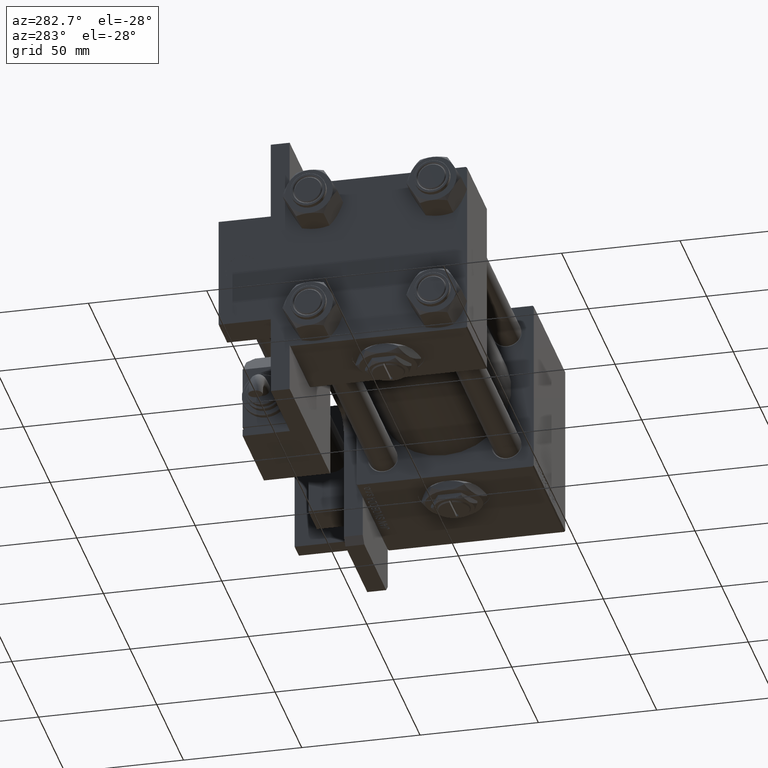
[diagram: clean part render]
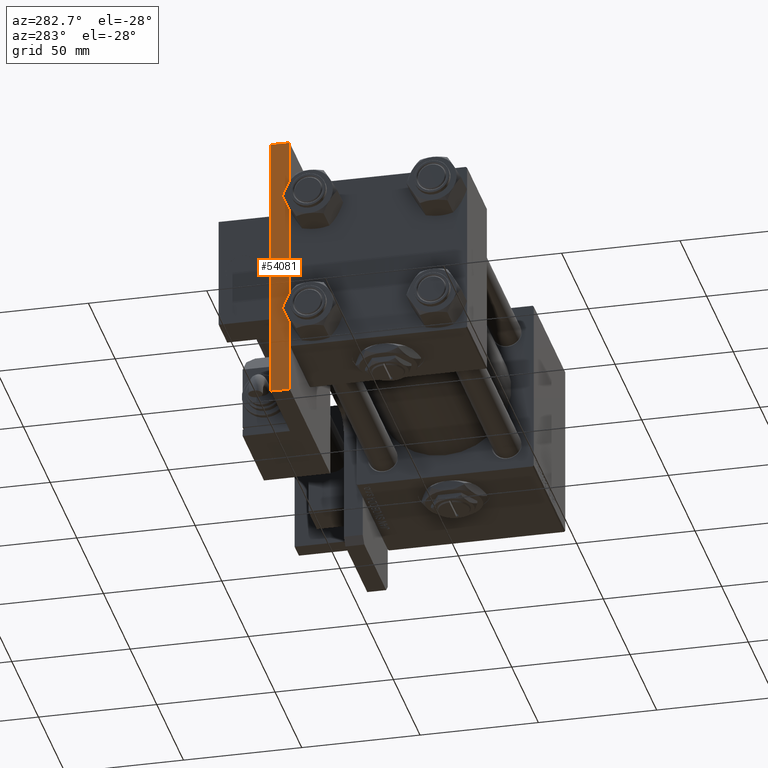
[diagram: same view with one face highlighted and labeled with its STEP entity id]
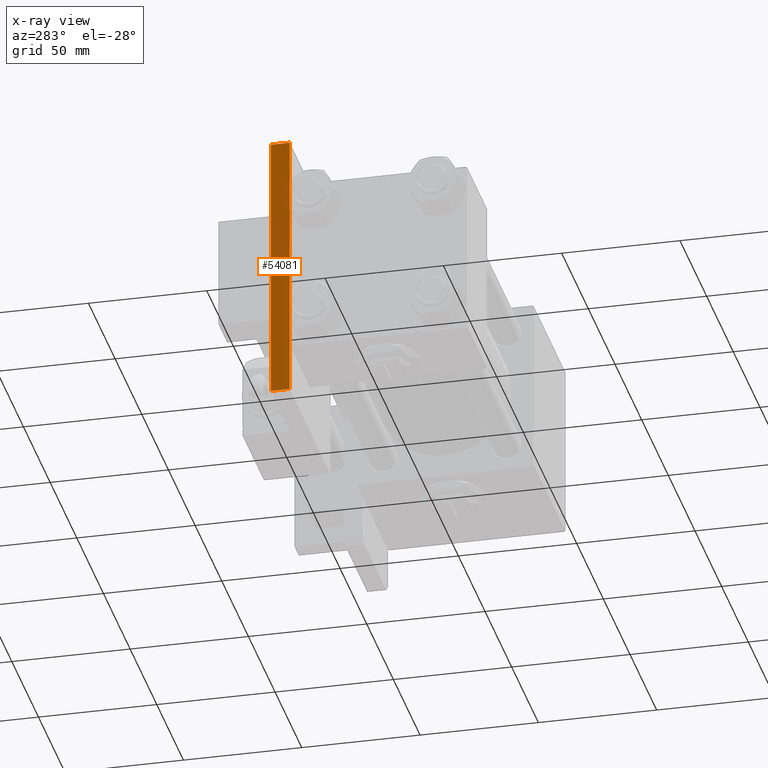
[diagram: x-ray of the same camera — body ghosted, the highlighted face saturated]
A machine part, auxiliary view. The second image highlights one B-rep face of the part: STEP entity #54081.
The next image is the same camera in x-ray: the body ghosted, the highlighted face saturated — about 0% of this face is hidden behind the body in this view.
In plain terms, the highlighted planar face has unit normal (1, 0, 0).
Its self-contained STEP definition (entity closure, byte-faithful):
#1761 = DIRECTION ( 'NONE',  ( -0.000000000000000000, -0.000000000000000000, -1.000000000000000000 ) ) ;
#4221 = VERTEX_POINT ( 'NONE', #36868 ) ;
#6667 = EDGE_CURVE ( 'NONE', #29647, #28862, #23490, .T. ) ;
#7154 = CARTESIAN_POINT ( 'NONE',  ( 0.000000000000000000, 115.0000000000000142, 0.000000000000000000 ) ) ;
#7532 = CARTESIAN_POINT ( 'NONE',  ( 0.000000000000000000, 0.000000000000000000, 8.000000000000000000 ) ) ;
#10888 = DIRECTION ( 'NONE',  ( -0.000000000000000000, -0.000000000000000000, -1.000000000000000000 ) ) ;
#12633 = ORIENTED_EDGE ( 'NONE', *, *, #41963, .T. ) ;
#13074 = DIRECTION ( 'NONE',  ( -1.000000000000000000, 0.000000000000000000, 0.000000000000000000 ) ) ;
#15699 = VECTOR ( 'NONE', #45794, 1000.000000000000000 ) ;
#16896 = FACE_OUTER_BOUND ( 'NONE', #41534, .T. ) ;
#17768 = PLANE ( 'NONE',  #43043 ) ;
#19687 = LINE ( 'NONE', #50763, #36917 ) ;
#22126 = VERTEX_POINT ( 'NONE', #37483 ) ;
#23490 = LINE ( 'NONE', #36997, #15699 ) ;
#23997 = LINE ( 'NONE', #41047, #29573 ) ;
#25910 = CARTESIAN_POINT ( 'NONE',  ( 0.000000000000000000, 0.000000000000000000, 8.000000000000000000 ) ) ;
#28862 = VERTEX_POINT ( 'NONE', #7154 ) ;
#29573 = VECTOR ( 'NONE', #1761, 1000.000000000000000 ) ;
#29647 = VERTEX_POINT ( 'NONE', #31592 ) ;
#30038 = ORIENTED_EDGE ( 'NONE', *, *, #6667, .T. ) ;
#31592 = CARTESIAN_POINT ( 'NONE',  ( 0.000000000000000000, 0.000000000000000000, 0.000000000000000000 ) ) ;
#32453 = VECTOR ( 'NONE', #43829, 1000.000000000000000 ) ;
#34785 = DIRECTION ( 'NONE',  ( 0.000000000000000000, 0.000000000000000000, 1.000000000000000000 ) ) ;
#36868 = CARTESIAN_POINT ( 'NONE',  ( 0.000000000000000000, 0.000000000000000000, 8.000000000000000000 ) ) ;
#36917 = VECTOR ( 'NONE', #10888, 1000.000000000000000 ) ;
#36997 = CARTESIAN_POINT ( 'NONE',  ( 0.000000000000000000, 0.000000000000000000, 0.000000000000000000 ) ) ;
#37483 = CARTESIAN_POINT ( 'NONE',  ( 0.000000000000000000, 115.0000000000000142, 8.000000000000000000 ) ) ;
#39914 = ORIENTED_EDGE ( 'NONE', *, *, #48285, .F. ) ;
#41047 = CARTESIAN_POINT ( 'NONE',  ( 0.000000000000000000, 115.0000000000000142, 8.000000000000000000 ) ) ;
#41534 = EDGE_LOOP ( 'NONE', ( #30038, #46989, #39914, #12633 ) ) ;
#41963 = EDGE_CURVE ( 'NONE', #4221, #29647, #19687, .T. ) ;
#42420 = EDGE_CURVE ( 'NONE', #22126, #28862, #23997, .T. ) ;
#43043 = AXIS2_PLACEMENT_3D ( 'NONE', #7532, #13074, #34785 ) ;
#43829 = DIRECTION ( 'NONE',  ( 0.000000000000000000, 1.000000000000000000, 0.000000000000000000 ) ) ;
#45794 = DIRECTION ( 'NONE',  ( 0.000000000000000000, 1.000000000000000000, 0.000000000000000000 ) ) ;
#46989 = ORIENTED_EDGE ( 'NONE', *, *, #42420, .F. ) ;
#48214 = LINE ( 'NONE', #25910, #32453 ) ;
#48285 = EDGE_CURVE ( 'NONE', #4221, #22126, #48214, .T. ) ;
#50763 = CARTESIAN_POINT ( 'NONE',  ( 0.000000000000000000, 0.000000000000000000, 8.000000000000000000 ) ) ;
#54081 = ADVANCED_FACE ( 'NONE', ( #16896 ), #17768, .F. ) ;